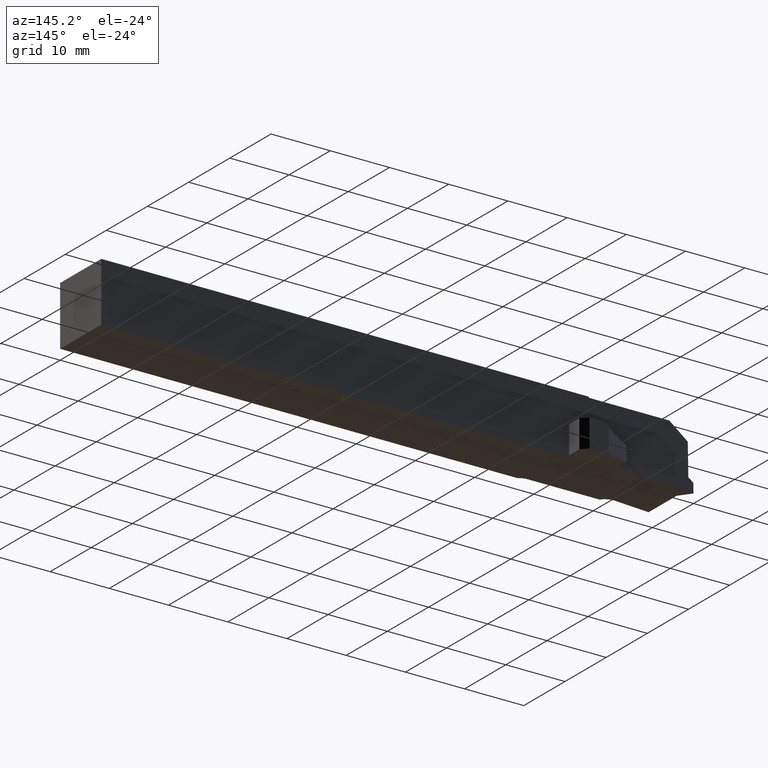
[diagram: clean part render]
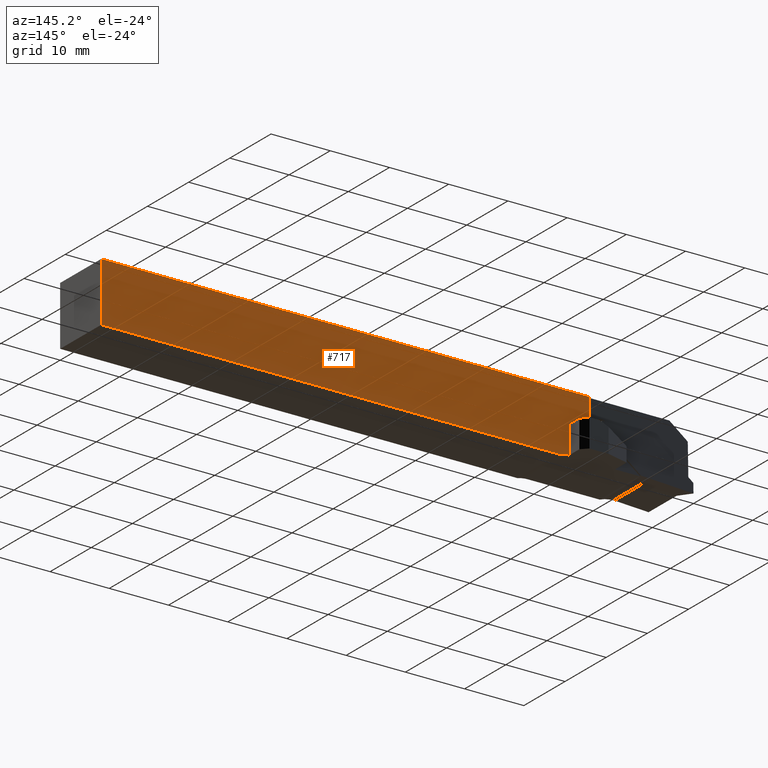
[diagram: same view with one face highlighted and labeled with its STEP entity id]
A machine part, auxiliary view. The second image highlights one B-rep face of the part: STEP entity #717.
In plain terms, the highlighted planar face has unit normal (0, -1, 0).
Its self-contained STEP definition (entity closure, byte-faithful):
#123 = CARTESIAN_POINT ( 'NONE',  ( 18.26734401660496900, 0.0000000000000000000, -15.00415379869298200 ) ) ;
#126 = FACE_OUTER_BOUND ( 'NONE', #153, .T. ) ;
#134 = CARTESIAN_POINT ( 'NONE',  ( 17.66183445898711900, 0.0000000000000000000, -9.999999999999980500 ) ) ;
#146 = EDGE_CURVE ( 'NONE', #266, #437, #1023, .T. ) ;
#153 = EDGE_LOOP ( 'NONE', ( #564, #505, #1780, #1033, #442, #205, #1825, #838, #330 ) ) ;
#161 = VECTOR ( 'NONE', #1138, 1000.000000000000000 ) ;
#174 = LINE ( 'NONE', #1012, #1759 ) ;
#205 = ORIENTED_EDGE ( 'NONE', *, *, #1154, .T. ) ;
#229 = DIRECTION ( 'NONE',  ( 0.0000000000000000000, 0.0000000000000000000, 1.000000000000000000 ) ) ;
#266 = VERTEX_POINT ( 'NONE', #406 ) ;
#275 = CARTESIAN_POINT ( 'NONE',  ( 22.78119326666009000, 0.0000000000000000000, -19.99999999999996100 ) ) ;
#279 = LINE ( 'NONE', #1940, #161 ) ;
#288 = DIRECTION ( 'NONE',  ( 9.227604724736157000E-016, 0.0000000000000000000, -1.000000000000000000 ) ) ;
#311 = DIRECTION ( 'NONE',  ( -1.000000000000000000, -0.0000000000000000000, 0.0000000000000000000 ) ) ;
#329 = DIRECTION ( 'NONE',  ( -0.0000000000000000000, 1.000000000000000000, -0.0000000000000000000 ) ) ;
#330 = ORIENTED_EDGE ( 'NONE', *, *, #831, .F. ) ;
#343 = VECTOR ( 'NONE', #1570, 1000.000000000000000 ) ;
#354 = CARTESIAN_POINT ( 'NONE',  ( 16.27928357555254400, 0.0000000000000000000, -15.86895277092410200 ) ) ;
#371 = DIRECTION ( 'NONE',  ( 0.0000000000000000000, -1.000000000000000000, 0.0000000000000000000 ) ) ;
#399 = EDGE_CURVE ( 'NONE', #1811, #1666, #2056, .T. ) ;
#406 = CARTESIAN_POINT ( 'NONE',  ( 100.0000000000000000, 0.0000000000000000000, -9.999999999999962700 ) ) ;
#429 = EDGE_CURVE ( 'NONE', #1266, #266, #1450, .T. ) ;
#437 = VERTEX_POINT ( 'NONE', #975 ) ;
#442 = ORIENTED_EDGE ( 'NONE', *, *, #399, .F. ) ;
#444 = LINE ( 'NONE', #134, #1764 ) ;
#505 = ORIENTED_EDGE ( 'NONE', *, *, #146, .F. ) ;
#521 = DIRECTION ( 'NONE',  ( 0.0000000000000000000, 0.0000000000000000000, 1.000000000000000000 ) ) ;
#554 = DIRECTION ( 'NONE',  ( -0.9169983826296710400, 0.0000000000000000000, -0.3988909202458328900 ) ) ;
#555 = DIRECTION ( 'NONE',  ( -0.0000000000000000000, 1.000000000000000000, 0.0000000000000000000 ) ) ;
#564 = ORIENTED_EDGE ( 'NONE', *, *, #1610, .F. ) ;
#678 = EDGE_CURVE ( 'NONE', #1501, #994, #2004, .T. ) ;
#682 = PLANE ( 'NONE',  #1924 ) ;
#717 = ADVANCED_FACE ( 'NONE', ( #126 ), #682, .F. ) ;
#736 = CARTESIAN_POINT ( 'NONE',  ( 18.26734401660496900, 0.0000000000000000000, -15.00415379869298200 ) ) ;
#778 = AXIS2_PLACEMENT_3D ( 'NONE', #1291, #329, #1448 ) ;
#812 = CARTESIAN_POINT ( 'NONE',  ( 100.0000000000000000, 0.0000000000000000000, -19.99999999999996100 ) ) ;
#831 = EDGE_CURVE ( 'NONE', #1917, #954, #1383, .T. ) ;
#838 = ORIENTED_EDGE ( 'NONE', *, *, #1771, .T. ) ;
#850 = CARTESIAN_POINT ( 'NONE',  ( 0.0000000000000000000, 0.0000000000000000000, -19.99999999999996100 ) ) ;
#852 = DIRECTION ( 'NONE',  ( -7.334982985102778900E-016, -0.0000000000000000000, 1.000000000000000000 ) ) ;
#954 = VERTEX_POINT ( 'NONE', #354 ) ;
#975 = CARTESIAN_POINT ( 'NONE',  ( 17.66183445898711900, 0.0000000000000000000, -9.999999999999980500 ) ) ;
#994 = VERTEX_POINT ( 'NONE', #736 ) ;
#1012 = CARTESIAN_POINT ( 'NONE',  ( 20.99999999999999600, 0.0000000000000000000, -15.00415379869311700 ) ) ;
#1023 = LINE ( 'NONE', #1276, #1979 ) ;
#1027 = VECTOR ( 'NONE', #229, 1000.000000000000000 ) ;
#1033 = ORIENTED_EDGE ( 'NONE', *, *, #1827, .F. ) ;
#1129 = CARTESIAN_POINT ( 'NONE',  ( 100.0000000000000000, 0.0000000000000000000, -19.99999999999996100 ) ) ;
#1138 = DIRECTION ( 'NONE',  ( 1.000000000000000000, 0.0000000000000000000, 0.0000000000000000000 ) ) ;
#1154 = EDGE_CURVE ( 'NONE', #1811, #1501, #174, .T. ) ;
#1266 = VERTEX_POINT ( 'NONE', #812 ) ;
#1276 = CARTESIAN_POINT ( 'NONE',  ( 0.0000000000000000000, 0.0000000000000000000, -9.999999999999962700 ) ) ;
#1284 = CARTESIAN_POINT ( 'NONE',  ( 17.66183445898712600, 0.0000000000000000000, -13.75985649087585800 ) ) ;
#1291 = CARTESIAN_POINT ( 'NONE',  ( 21.00000000000000000, 0.0000000000000000000, -25.83415379869284200 ) ) ;
#1383 = CIRCLE ( 'NONE', #1831, 2.299999999999999800 ) ;
#1448 = DIRECTION ( 'NONE',  ( 0.0000000000000000000, 0.0000000000000000000, 1.000000000000000000 ) ) ;
#1450 = LINE ( 'NONE', #1129, #1027 ) ;
#1501 = VERTEX_POINT ( 'NONE', #2005 ) ;
#1527 = CARTESIAN_POINT ( 'NONE',  ( 15.36183445898712700, 0.0000000000000000000, -13.75985649087585800 ) ) ;
#1570 = DIRECTION ( 'NONE',  ( -1.000000000000000000, -0.0000000000000000000, 5.015016724933904800E-014 ) ) ;
#1610 = EDGE_CURVE ( 'NONE', #437, #1917, #444, .T. ) ;
#1666 = VERTEX_POINT ( 'NONE', #275 ) ;
#1686 = CARTESIAN_POINT ( 'NONE',  ( 13.02323933881409700, 0.0000000000000000000, -17.28532002582498700 ) ) ;
#1688 = DIRECTION ( 'NONE',  ( 0.0000000000000000000, 0.0000000000000000000, 1.000000000000000000 ) ) ;
#1696 = CARTESIAN_POINT ( 'NONE',  ( 21.00000000000000000, 0.0000000000000000000, -19.73415379869320300 ) ) ;
#1759 = VECTOR ( 'NONE', #852, 1000.000000000000000 ) ;
#1764 = VECTOR ( 'NONE', #288, 1000.000000000000000 ) ;
#1771 = EDGE_CURVE ( 'NONE', #994, #954, #1999, .T. ) ;
#1780 = ORIENTED_EDGE ( 'NONE', *, *, #429, .F. ) ;
#1811 = VERTEX_POINT ( 'NONE', #1696 ) ;
#1825 = ORIENTED_EDGE ( 'NONE', *, *, #678, .T. ) ;
#1827 = EDGE_CURVE ( 'NONE', #1666, #1266, #279, .T. ) ;
#1831 = AXIS2_PLACEMENT_3D ( 'NONE', #1527, #555, #1688 ) ;
#1917 = VERTEX_POINT ( 'NONE', #1284 ) ;
#1924 = AXIS2_PLACEMENT_3D ( 'NONE', #850, #371, #521 ) ;
#1940 = CARTESIAN_POINT ( 'NONE',  ( 0.0000000000000000000, 0.0000000000000000000, -19.99999999999996100 ) ) ;
#1979 = VECTOR ( 'NONE', #311, 1000.000000000000000 ) ;
#1999 = LINE ( 'NONE', #1686, #2055 ) ;
#2004 = LINE ( 'NONE', #123, #343 ) ;
#2005 = CARTESIAN_POINT ( 'NONE',  ( 20.99999999999999600, 0.0000000000000000000, -15.00415379869311700 ) ) ;
#2055 = VECTOR ( 'NONE', #554, 1000.000000000000100 ) ;
#2056 = CIRCLE ( 'NONE', #778, 6.099999999999821100 ) ;